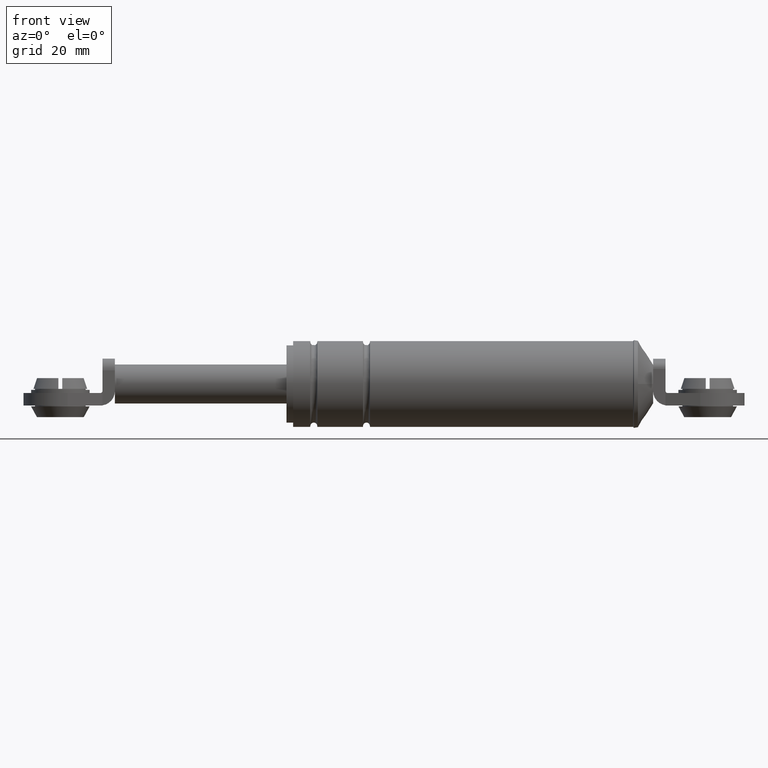
[diagram: clean part render]
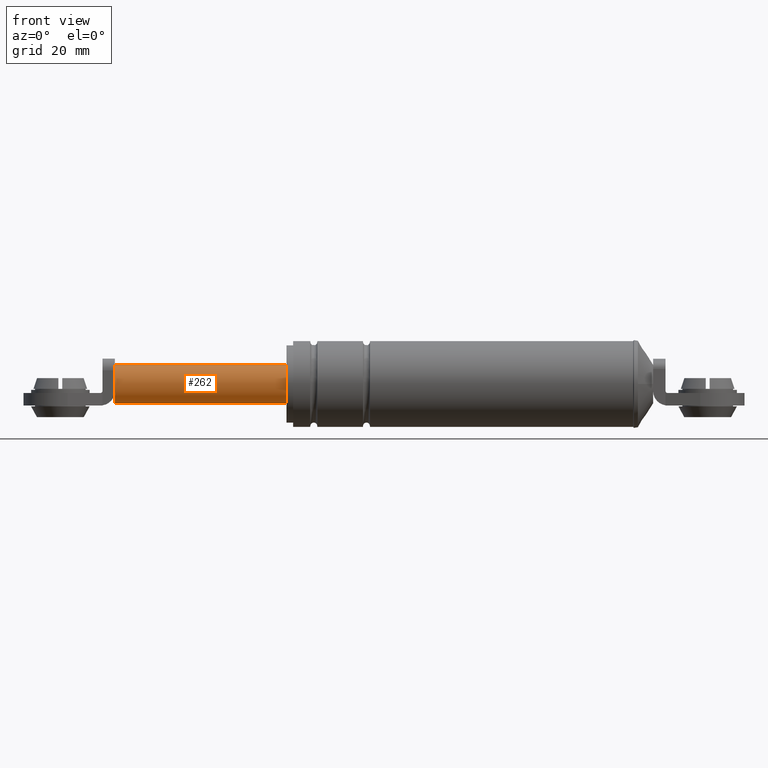
[diagram: same view with one face highlighted and labeled with its STEP entity id]
A machine part, front view. The second image highlights one B-rep face of the part: STEP entity #262.
In plain terms, the highlighted cylindrical surface (edge-blend (fillet) strip) has radius 5 mm, axis along (1, 0, 0).
Its self-contained STEP definition (entity closure, byte-faithful):
#262=ADVANCED_FACE('',(#1783),#1782,.T.);
#1782=CYLINDRICAL_SURFACE('',#2848,4.99999999991E+000);
#1783=FACE_OUTER_BOUND('',#2849,.T.);
#2845=CARTESIAN_POINT('',(0.00000000000E+000,0.00000000000E+000,1.14952983996E+002));
#2846=DIRECTION('',(1.00000000000E+000,-0.00000000000E+000,-0.00000000000E+000));
#2847=DIRECTION('',(0.00000000000E+000,0.00000000000E+000,-1.00000000000E+000));
#2848=AXIS2_PLACEMENT_3D('',#2845,#2846,#2847);
#2849=EDGE_LOOP('',(#3609,#3610,#3611,#3612,#3613));
#3609=ORIENTED_EDGE('',*,*,#3945,.F.);
#3610=ORIENTED_EDGE('',*,*,#3930,.F.);
#3611=ORIENTED_EDGE('',*,*,#4004,.T.);
#3612=ORIENTED_EDGE('',*,*,#3881,.T.);
#3613=ORIENTED_EDGE('',*,*,#4005,.F.);
#3881=EDGE_CURVE('',#5686,#5687,#5688,.T.);
#3930=EDGE_CURVE('',#6012,#6005,#6019,.T.);
#3945=EDGE_CURVE('',#6005,#6118,#6119,.T.);
#4004=EDGE_CURVE('',#6012,#5686,#6494,.T.);
#4005=EDGE_CURVE('',#6118,#5687,#6500,.T.);
#5686=VERTEX_POINT('',#7677);
#5687=VERTEX_POINT('',#7678);
#5688=CIRCLE('',#7682,4.99999999991E+000);
#6005=VERTEX_POINT('',#7898);
#6012=VERTEX_POINT('',#7902);
#6019=CIRCLE('',#7910,4.99999999991E+000);
#6118=VERTEX_POINT('',#7966);
#6119=CIRCLE('',#7970,4.99999999991E+000);
#6494=(BOUNDED_CURVE() B_SPLINE_CURVE(1,(#8200,#8201),.UNSPECIFIED.,.F.,.F.) B_SPLINE_CURVE_WITH_KNOTS((2,2),(8.33333335810E-002,9.16666666255E-001),.UNSPECIFIED.) CURVE() GEOMETRIC_REPRESENTATION_ITEM() RATIONAL_B_SPLINE_CURVE((1.00000000000E+000,1.00000000000E+000)) REPRESENTATION_ITEM('') );
#6500=(BOUNDED_CURVE() B_SPLINE_CURVE(1,(#8202,#8203),.UNSPECIFIED.,.F.,.F.) B_SPLINE_CURVE_WITH_KNOTS((2,2),(8.33333333333E-002,9.16666666667E-001),.UNSPECIFIED.) CURVE() GEOMETRIC_REPRESENTATION_ITEM() RATIONAL_B_SPLINE_CURVE((7.50000000000E-001,7.50000000000E-001)) REPRESENTATION_ITEM('') );
#7677=CARTESIAN_POINT('',(1.78442105705E+002,2.96059473233E-016,1.09952983996E+002));
#7678=CARTESIAN_POINT('',(1.78442105705E+002,0.00000000000E+000,1.19952983996E+002));
#7679=CARTESIAN_POINT('',(1.78442105705E+002,0.00000000000E+000,1.14952983996E+002));
#7680=DIRECTION('',(-1.00000000000E+000,0.00000000000E+000,0.00000000000E+000));
#7681=DIRECTION('',(0.00000000000E+000,-1.22460635382E-016,1.00000000000E+000));
#7682=AXIS2_PLACEMENT_3D('',#7679,#7680,#7681);
#7898=CARTESIAN_POINT('',(1.34442105705E+002,-4.66476151578E+000,1.13152983996E+002));
#7902=CARTESIAN_POINT('',(1.34442105705E+002,-1.71867011657E-011,1.09952983996E+002));
#7907=CARTESIAN_POINT('',(1.34442105705E+002,0.00000000000E+000,1.14952983996E+002));
#7908=DIRECTION('',(-1.00000000000E+000,0.00000000000E+000,0.00000000000E+000));
#7909=DIRECTION('',(-0.00000000000E+000,9.32952303173E-001,-3.60000000006E-001));
#7910=AXIS2_PLACEMENT_3D('',#7907,#7908,#7909);
#7966=CARTESIAN_POINT('',(1.34442105705E+002,2.74469703487E-006,1.19952983996E+002));
#7967=CARTESIAN_POINT('',(1.34442105705E+002,0.00000000000E+000,1.14952983996E+002));
#7968=DIRECTION('',(-1.00000000000E+000,0.00000000000E+000,0.00000000000E+000));
#7969=DIRECTION('',(-0.00000000000E+000,-0.00000000000E+000,-1.00000000000E+000));
#7970=AXIS2_PLACEMENT_3D('',#7967,#7968,#7969);
#8200=CARTESIAN_POINT('',(1.34442105718E+002,0.00000000000E+000,1.09952983996E+002));
#8201=CARTESIAN_POINT('',(1.78442105683E+002,0.00000000000E+000,1.09952983996E+002));
#8202=CARTESIAN_POINT('',(1.34442105705E+002,-2.96059473233E-016,1.19952983996E+002));
#8203=CARTESIAN_POINT('',(1.78442105705E+002,-2.96059473233E-016,1.19952983996E+002));